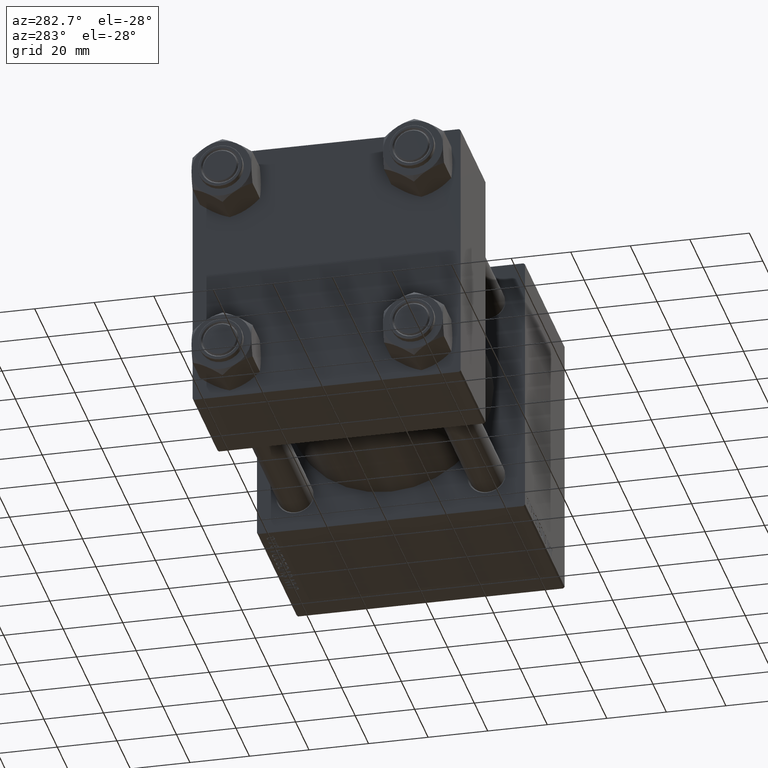
[diagram: clean part render]
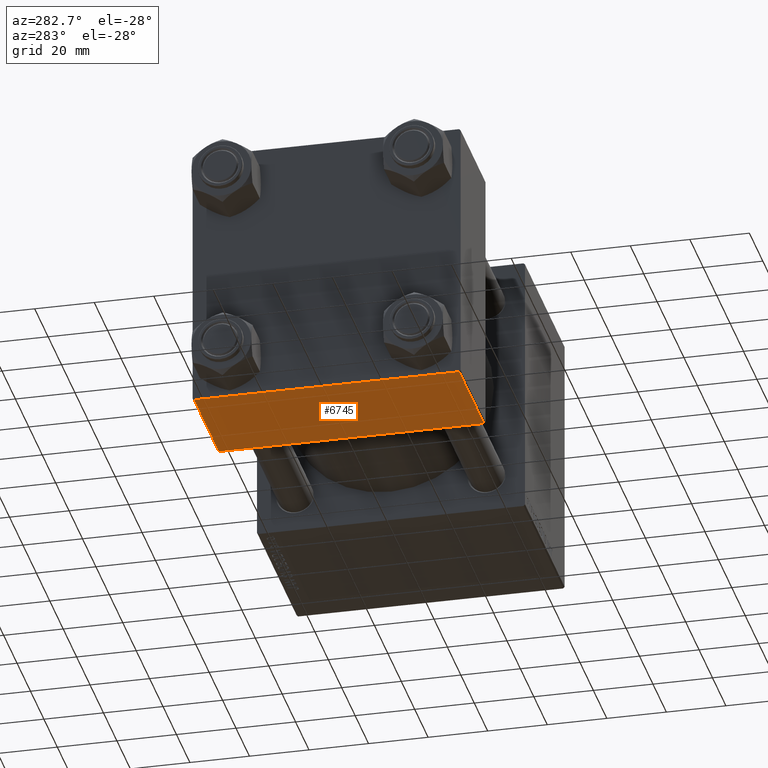
[diagram: same view with one face highlighted and labeled with its STEP entity id]
A machine part, auxiliary view. The second image highlights one B-rep face of the part: STEP entity #6745.
In plain terms, the highlighted planar face has unit normal (0, 0, -1).
Its self-contained STEP definition (entity closure, byte-faithful):
#87 = VECTOR ( 'NONE', #44219, 1000.000000000000000 ) ;
#953 = VECTOR ( 'NONE', #46330, 1000.000000000000000 ) ;
#2438 = CARTESIAN_POINT ( 'NONE',  ( 0.000000000000000000, 44.99999999999998579, -44.99999999999998579 ) ) ;
#2726 = FACE_OUTER_BOUND ( 'NONE', #34433, .T. ) ;
#6031 = ORIENTED_EDGE ( 'NONE', *, *, #42395, .F. ) ;
#6546 = CARTESIAN_POINT ( 'NONE',  ( 0.000000000000000000, -44.49999999999995737, -45.00000000000000000 ) ) ;
#6745 = ADVANCED_FACE ( 'NONE', ( #2726 ), #33805, .T. ) ;
#6762 = LINE ( 'NONE', #13906, #16041 ) ;
#6870 = LINE ( 'NONE', #50398, #953 ) ;
#8548 = DIRECTION ( 'NONE',  ( 0.000000000000000000, 1.000000000000000000, 1.541976423090495880E-16 ) ) ;
#9860 = DIRECTION ( 'NONE',  ( 0.000000000000000000, -1.000000000000000000, -1.541976423090495633E-16 ) ) ;
#13906 = CARTESIAN_POINT ( 'NONE',  ( 37.00000000000000000, 44.49999999999998579, -44.99999999999998579 ) ) ;
#14021 = EDGE_CURVE ( 'NONE', #46002, #36166, #33035, .T. ) ;
#14304 = VERTEX_POINT ( 'NONE', #34769 ) ;
#16041 = VECTOR ( 'NONE', #22055, 1000.000000000000000 ) ;
#17051 = EDGE_CURVE ( 'NONE', #14304, #46002, #6762, .T. ) ;
#17229 = LINE ( 'NONE', #2438, #87 ) ;
#22055 = DIRECTION ( 'NONE',  ( 1.000000000000000000, 0.000000000000000000, 0.000000000000000000 ) ) ;
#22742 = ORIENTED_EDGE ( 'NONE', *, *, #17051, .T. ) ;
#25471 = AXIS2_PLACEMENT_3D ( 'NONE', #49344, #46767, #8548 ) ;
#25648 = CARTESIAN_POINT ( 'NONE',  ( 37.00000000000000000, 44.99999999999998579, -44.99999999999998579 ) ) ;
#33035 = LINE ( 'NONE', #25648, #33827 ) ;
#33805 = PLANE ( 'NONE',  #25471 ) ;
#33827 = VECTOR ( 'NONE', #9860, 1000.000000000000000 ) ;
#34433 = EDGE_LOOP ( 'NONE', ( #6031, #22742, #39502, #41921 ) ) ;
#34769 = CARTESIAN_POINT ( 'NONE',  ( 0.000000000000000000, 44.49999999999998579, -44.99999999999998579 ) ) ;
#36166 = VERTEX_POINT ( 'NONE', #36634 ) ;
#36634 = CARTESIAN_POINT ( 'NONE',  ( 37.00000000000000000, -44.49999999999995737, -45.00000000000000000 ) ) ;
#39502 = ORIENTED_EDGE ( 'NONE', *, *, #14021, .T. ) ;
#41921 = ORIENTED_EDGE ( 'NONE', *, *, #46944, .T. ) ;
#42395 = EDGE_CURVE ( 'NONE', #14304, #49370, #17229, .T. ) ;
#44219 = DIRECTION ( 'NONE',  ( 0.000000000000000000, -1.000000000000000000, -1.541976423090495633E-16 ) ) ;
#45265 = CARTESIAN_POINT ( 'NONE',  ( 37.00000000000000000, 44.49999999999998579, -44.99999999999998579 ) ) ;
#46002 = VERTEX_POINT ( 'NONE', #45265 ) ;
#46330 = DIRECTION ( 'NONE',  ( -1.000000000000000000, 0.000000000000000000, 0.000000000000000000 ) ) ;
#46767 = DIRECTION ( 'NONE',  ( 0.000000000000000000, 1.541976423090495880E-16, -1.000000000000000000 ) ) ;
#46944 = EDGE_CURVE ( 'NONE', #36166, #49370, #6870, .T. ) ;
#49344 = CARTESIAN_POINT ( 'NONE',  ( 37.00000000000000000, 44.99999999999998579, -44.99999999999998579 ) ) ;
#49370 = VERTEX_POINT ( 'NONE', #6546 ) ;
#50398 = CARTESIAN_POINT ( 'NONE',  ( 0.000000000000000000, -44.49999999999998579, -45.00000000000000000 ) ) ;